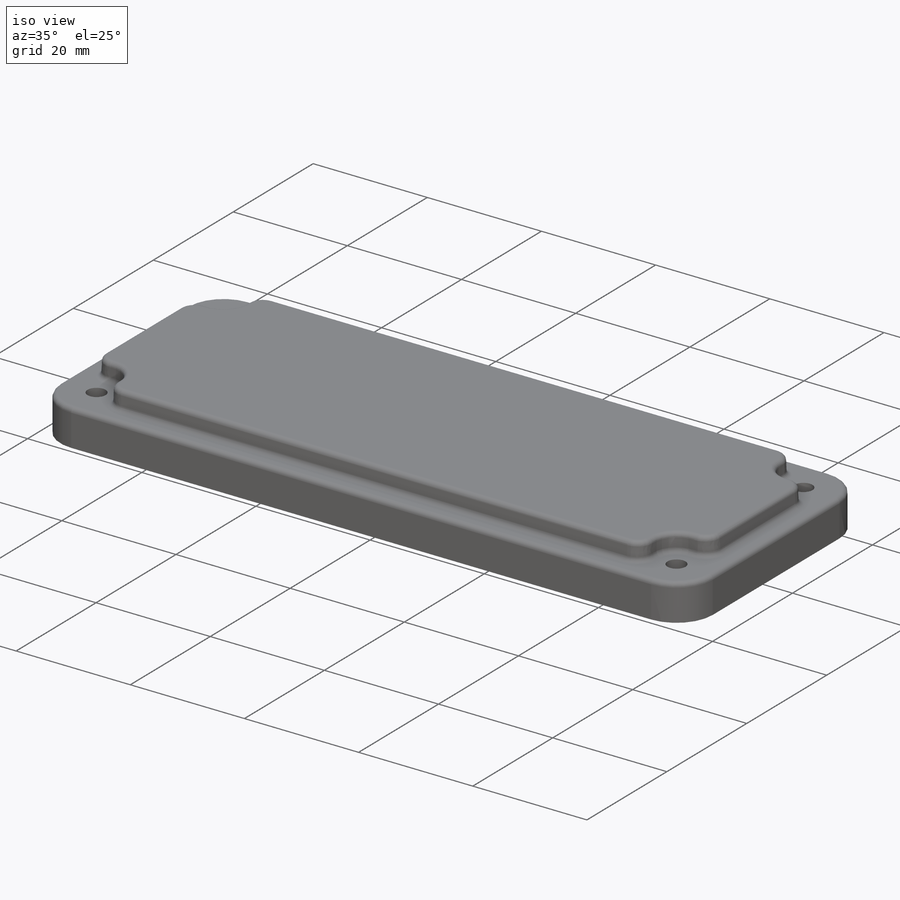
[diagram: iso view]
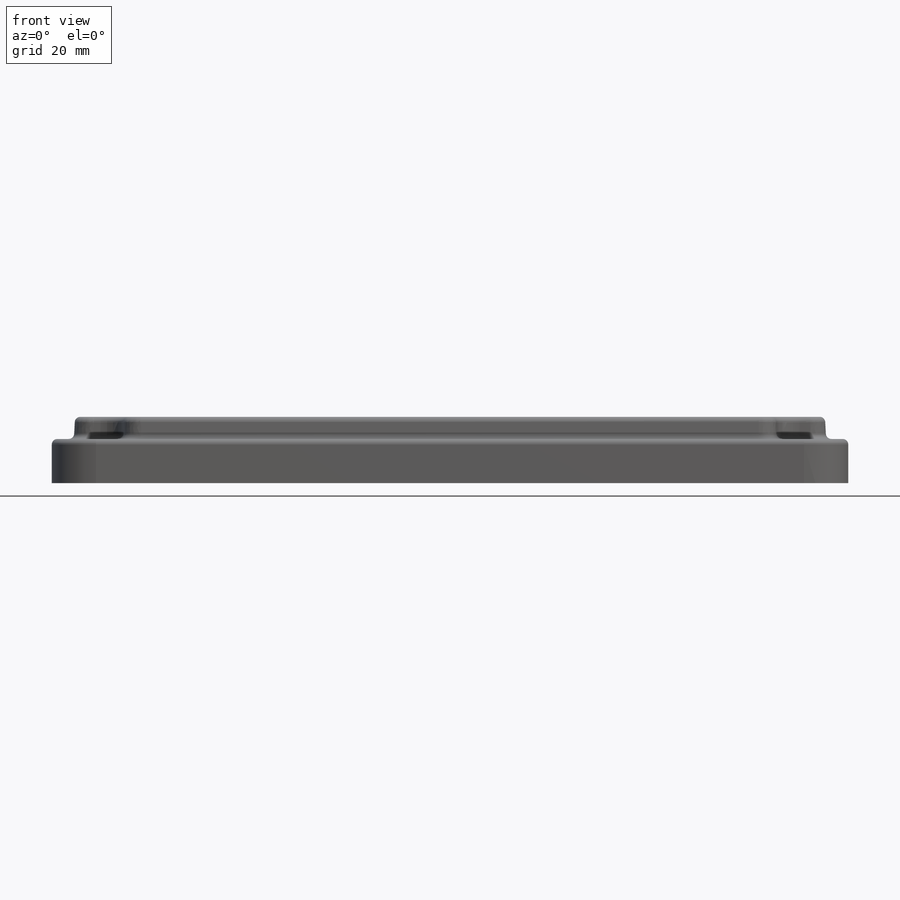
[diagram: front view]
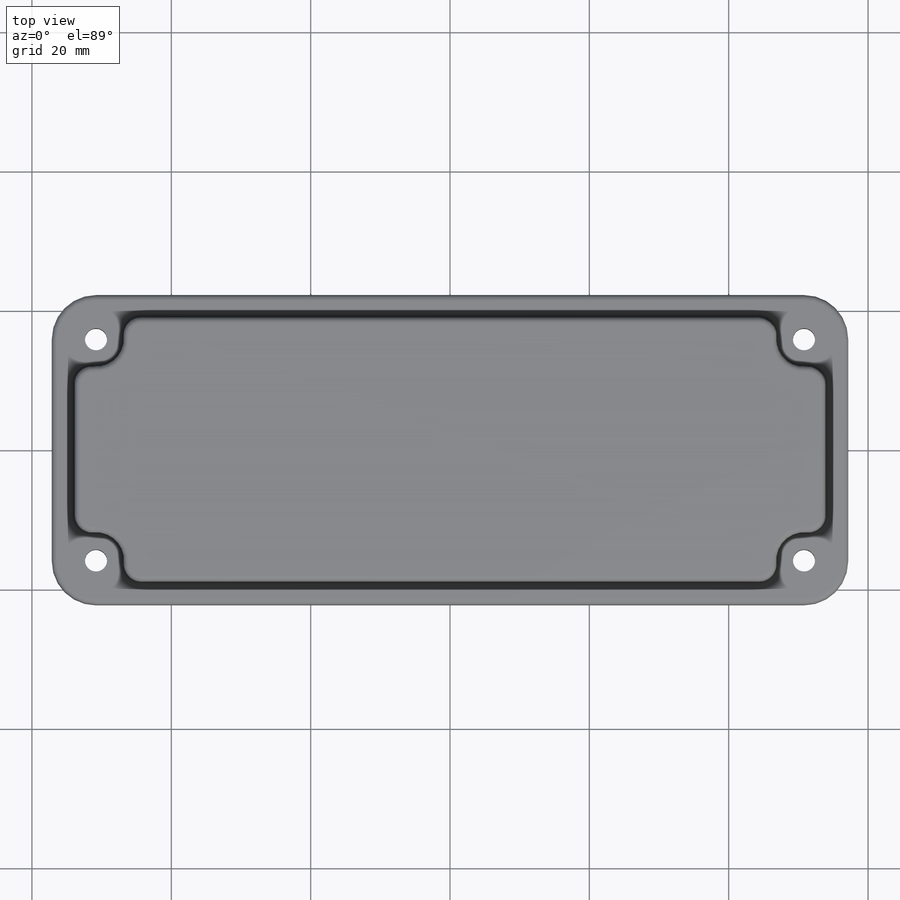
[diagram: top view]
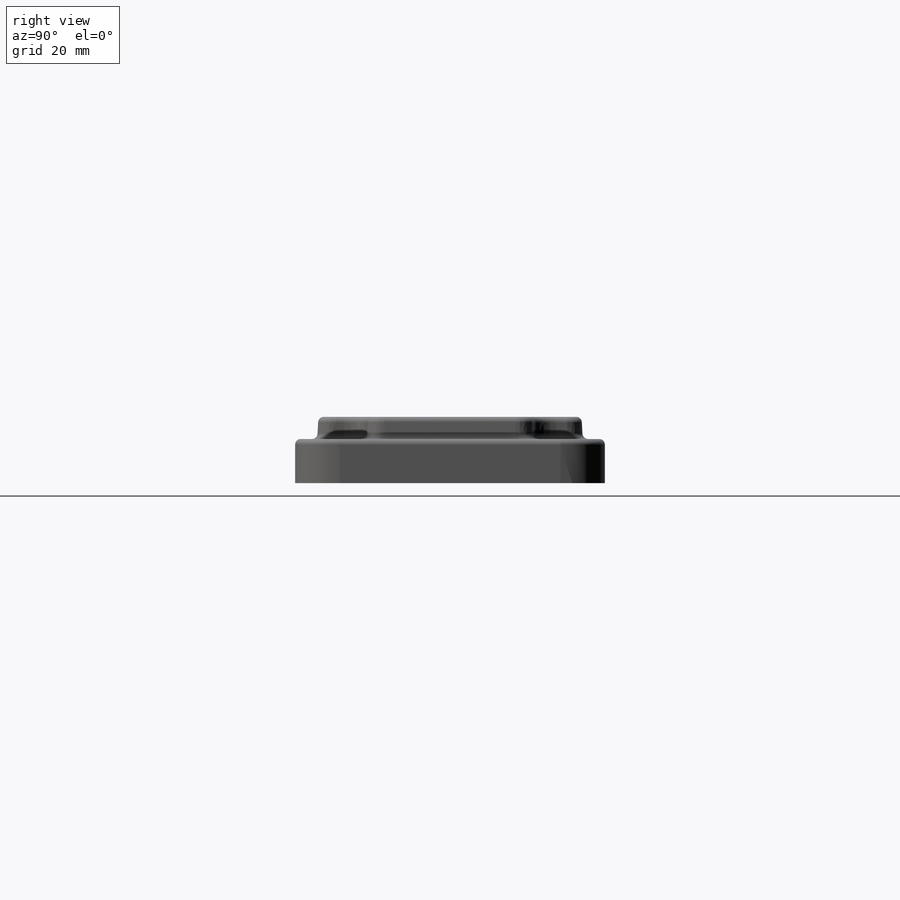
[diagram: right view]
SOLIDWORKS PART (.sldprt)
format: sldprt  version: not decoded by parser v0  size: 396,288 bytes
history: native  units: mm
features: sketch x5, fillet x4, cut_extrude x3, extrude x2, mirror x2, material x1 (+12 scaffold rows collapsed)
feature tree (29):
  scaffold x12  (default folders/planes/origin — collapsed)
  material  "Material <not specified>"
  sketch  "Sketch1"  dims[c1.D1=6.35mm c1.D2=6.35mm c1.D3=6.35mm c1.D4=6.35mm c2.D1=114.3mm c2.D2=44.45mm]
  extrude  "Base-Extrude"  Depth=6.35mm
  sketch  "Sketch2"  dims[D1=3.175mm]
  extrude  "Boss-Extrude1"  Depth=3.175mm
  sketch  "Sketch3"  dims[D1=7.9375mm]
  cut_extrude  "Cut-Extrude1"  [1 undecoded]
  sketch  "Sketch4"  dims[D1=3.175mm]
  cut_extrude  "Cut-Extrude2"  [1 undecoded]
  mirror  "Mirror1"
  mirror  "Mirror2"
  fillet  "Fillet1"  Radius=2.54mm
  fillet  "Fillet2"  Radius=0.79375mm
  sketch  "Sketch5"  dims[D1=6.35mm D2=12.7mm D3=12.7mm D4=6.35mm]
  cut_extrude  "Cut-Extrude3"  Depth=6.35mm
  fillet  "Fillet3"  Radius=6.35mm
  fillet  "Fillet4"  Radius=3.175mm
decode coverage: 12 of 16 modeling features carry decoded parameters
note: 2 parameter values undecoded
note: suppression state not decoded; provenance and decode notes live in map.json
